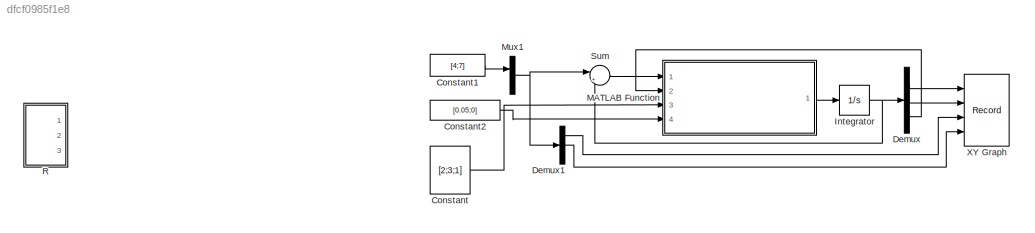
MODEL slx_dfcf0985f1e8
KIND model
CONFIG AbsTol = auto
CONFIG EnableMultiTasking = off
CONFIG FixedStep = auto
CONFIG MaxStep = auto
CONFIG MinStep = auto
CONFIG RelTol = 1e-3
CONFIG SampleTimeConstraint = Unconstrained
CONFIG SolverName = VariableStepAuto
CONFIG StartTime = 0.0
CONFIG StopTime = 10
BLOCK [Constant] Constant
  Value = [2;3;1]
  VectorParams1D = off
BLOCK [Constant] Constant1
  Value = [4;7]
BLOCK [Constant] Constant2
  Value = [0.05;0]
BLOCK [Demux] Demux
  Outputs = 3
  Ports = [1, 3]
BLOCK [Demux] Demux1
  Outputs = 3
  Ports = [1, 3]
BLOCK [Integrator] Integrator
  InitialCondition = [2;2;pi/4]
  Ports = [1, 1]
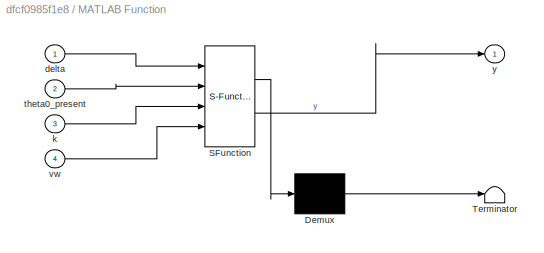
BLOCK [SubSystem] MATLAB Function
  ErrorFcn = Stateflow.Translate.translate
  PermitHierarchicalResolution = ExplicitOnly
  Ports = [4, 1]
  RequestExecContextInheritance = off
  SFBlockType = MATLAB Function
  TreatAsAtomicUnit = on
BLOCK [Demux] MATLAB Function/ Demux 
  Outputs = 1
  Ports = [1, 1]
BLOCK [S-Function] MATLAB Function/ SFunction 
  EnableBusSupport = on
  FunctionName = sf_sfun
  PortCounts = [4 2]
  Ports = [4, 2]
  SFcnIsStateOwnerBlock = off
  SFunctionDeploymentMode = off
  Tag = Stateflow S-Function 2
BLOCK [Terminator] MATLAB Function/ Terminator 
BLOCK [Inport] MATLAB Function/delta
BLOCK [Inport] MATLAB Function/k
  Port = 3
BLOCK [Inport] MATLAB Function/theta0_present
  Port = 2
BLOCK [Inport] MATLAB Function/vw
  Port = 4
BLOCK [Outport] MATLAB Function/y
  VectorParamsAs1DForOutWhenUnconnected = off
BLOCK [Mux] Mux1
  DisplayOption = bar
  Inputs = 2
  Ports = [2, 1]
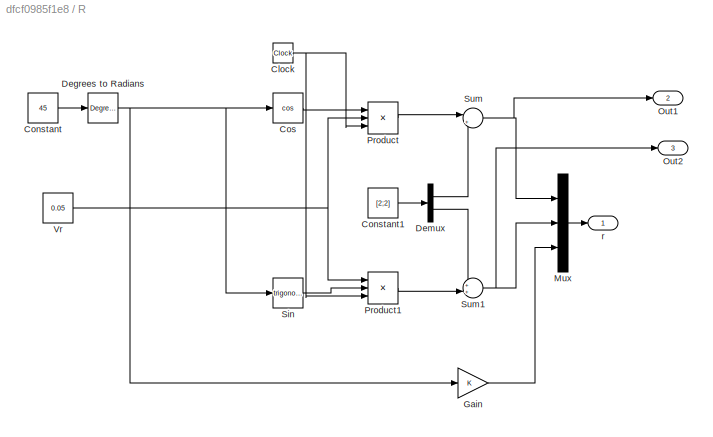
BLOCK [SubSystem] R
  Ports = [0, 3]
  RequestExecContextInheritance = off
BLOCK [Clock] R/Clock
BLOCK [Constant] R/Constant
  Value = 45
BLOCK [Constant] R/Constant1
  Value = [2;2]
BLOCK [Trigonometry] R/Cos
  Operator = cos
  Ports = [1, 1]
BLOCK [Reference] R/Degrees to Radians  REF=simulink_extras/Transformations/Degrees to
Radians
  Ports = [1, 1]
  SourceBlock = simulink_extras/Transformations/Degrees to\nRadians
  SourceProductBaseCode = SL
  SourceType = DegreesToRadians
BLOCK [Demux] R/Demux
  Outputs = 2
  Ports = [1, 2]
BLOCK [Gain] R/Gain
BLOCK [Mux] R/Mux
  DisplayOption = bar
  Inputs = 3
  Ports = [3, 1]
BLOCK [Outport] R/Out1
  Port = 2
BLOCK [Outport] R/Out2
  Port = 3
BLOCK [Product] R/Product
  Inputs = 3
  Ports = [3, 1]
BLOCK [Product] R/Product1
  Inputs = 3
  Ports = [3, 1]
BLOCK [Trigonometry] R/Sin
  Ports = [1, 1]
BLOCK [Sum] R/Sum
  Inputs = |++
  Ports = [2, 1]
BLOCK [Sum] R/Sum1
  Inputs = ++|
  Ports = [2, 1]
BLOCK [Constant] R/Vr
  Value = 0.05
BLOCK [Outport] R/r
BLOCK [Sum] Sum
  Inputs = |+-
  Ports = [2, 1]
BLOCK [Record] XY Graph
  CompatibilityTag = XY
  FileSettingsInternal = {"entries":[{"content":{"excelSettings":{"content":{},"type":"Streamout.ExcelSettings"}},"type":"Streamout.FileSettingStorage","uuid":"327fa276-bddc-4a30-a90d-6ce471a90d6d"}],"packageUris":["http://schema.mathworks.com/mf0/streamout_blocks/R2020a"],"version":"1.0"}
  Layout = [1 1]
  Ports = [4]
  SignalsInternal = {"entries":[{"content":{"signals":[{"content":{"blockPath":["Xe_chay_diem_target_khong_huong_theta/XY Graph"],"channel":[],"dimensions":[1],"domain":"Xe_chay_diem_target_khong_huong_theta/XY Graph","lineColor":"#64d413","plots":[1],"port":1,"sid":[],"signalID":4977,"signalName":"X xe"},"type":"RecordBlkView.Signal","uuid":"2c9c0063-3d7d-4505-bbcb-27bf7b98b8ce"},{"content":{"blockPath":["Xe_chay_di...<+1139ch>
  VisualizationBindings = {"xyplotplugin":{"info":[{"series":[{"bindingParametersList":[{"parameter":"X-Axis","signalID":4977,"signalName":"X xe"},{"parameter":"Y-Axis","signalID":4980,"signalName":"Y xe"}],"seriesID":23154},{"bindingParametersList":[{"parameter":"X-Axis","signalID":4983,"signalName":"X target"},{"parameter":"Y-Axis","signalID":4986,"signalName":"Y target"}],"seriesID":43328}],"subplotID":1},{"series":[{"b...<+186ch>
LINE Constant1:1 -> Mux1:1
LINE Constant2:1 -> MATLAB Function:4
LINE Constant:1 -> MATLAB Function:3
LINE Demux1:1 -> XY Graph:3
LINE Demux1:2 -> XY Graph:4
LINE Demux:1 -> XY Graph:1
LINE Demux:2 -> XY Graph:2
LINE Demux:3 -> MATLAB Function:2
NET Integrator:1 -> Demux:1, Sum:2
LINE MATLAB Function:1 -> Integrator:1
NET Mux1:1 -> Demux1:1, Sum:1
NET R/Clock:1 -> R/Product1:3, R/Product:3
LINE R/Constant1:1 -> R/Demux:1
LINE R/Constant:1 -> R/Degrees to Radians:1
LINE R/Cos:1 -> R/Product:1
NET R/Degrees to Radians:1 -> R/Cos:1, R/Gain:1, R/Sin:1
LINE R/Demux:1 -> R/Sum:2
LINE R/Demux:2 -> R/Sum1:1
LINE R/Gain:1 -> R/Mux:3
LINE R/Mux:1 -> R/r:1
LINE R/Product1:1 -> R/Sum1:2
LINE R/Product:1 -> R/Sum:1
LINE R/Sin:1 -> R/Product1:2
NET R/Sum1:1 -> R/Mux:2, R/Out2:1
NET R/Sum:1 -> R/Mux:1, R/Out1:1
NET R/Vr:1 -> R/Product1:1, R/Product:2
LINE Sum:1 -> MATLAB Function:1
note: NET lines group one-source signal fan-out (src -> all destinations, sorted); 1:1 wires keep LINE
CHART MATLAB Function states=1 transitions=1
  STATE_LABEL 'eML_blk_kernel()'
  STATE_LABEL 'SCRIPT:\nfunction y = fcn(delta,theta0_present,k,vw)\n%#codegen\nA=[cos(theta0_present)   sin(theta0_present) 0;\n    -sin(theta0_present) cos(theta0_present) 0;\n    0                    0                    1];\ne=A*delta;\nV_c=[vw(1)*cos(e(3))+k(1)*e(1);\n    vw(2)+k(2)*vw(1)*e(2)+k(3)*vw(1)*sin(e(3))];\nMatrix=[cos(theta0_present) 0;\n        sin(theta0_present) 0;\n        0                   1];\nu=Matr...<+14ch>'
CHART  states=0 transitions=0
